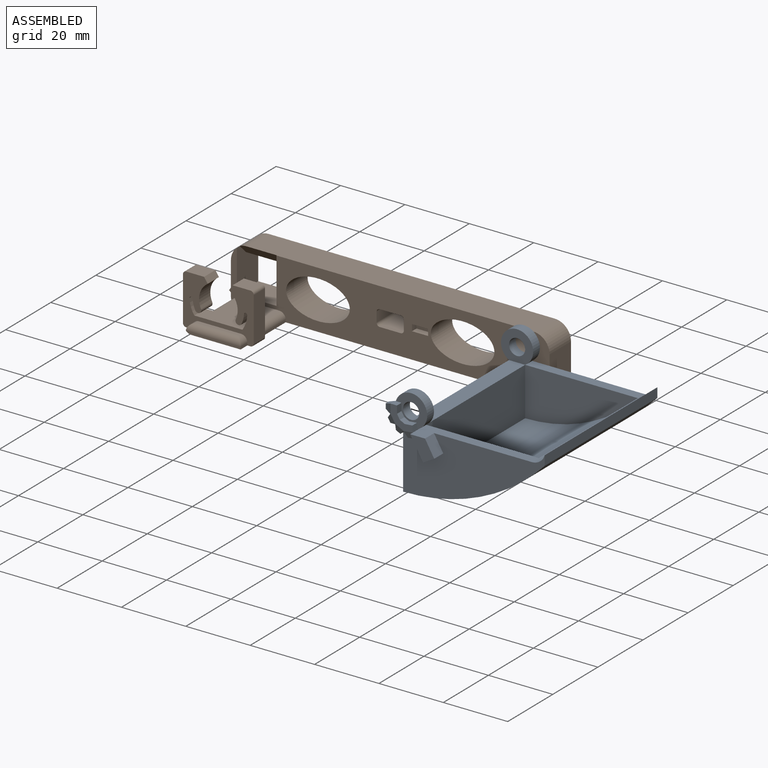
[diagram: assembled view]
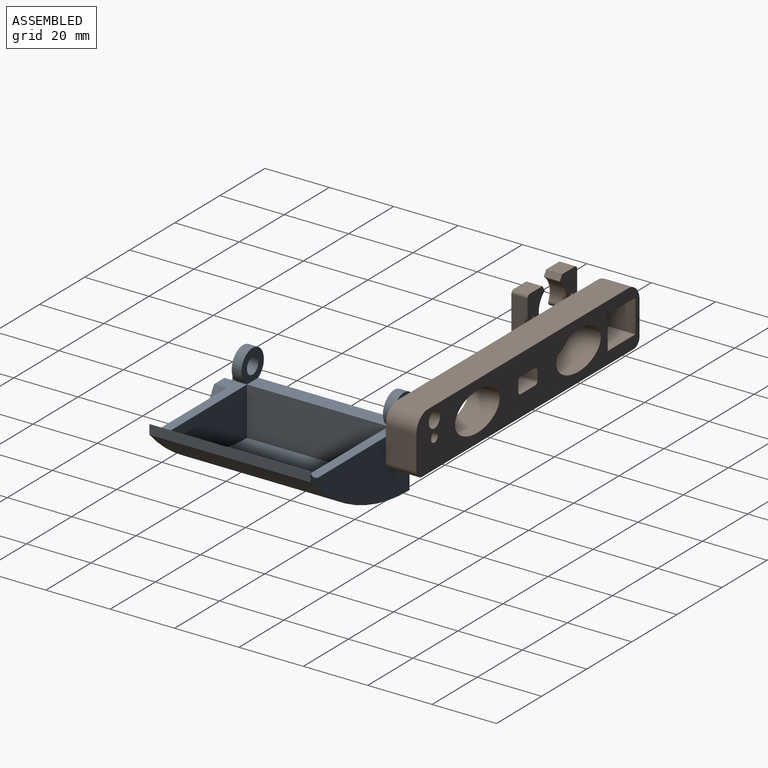
[diagram: assembled view, second angle]
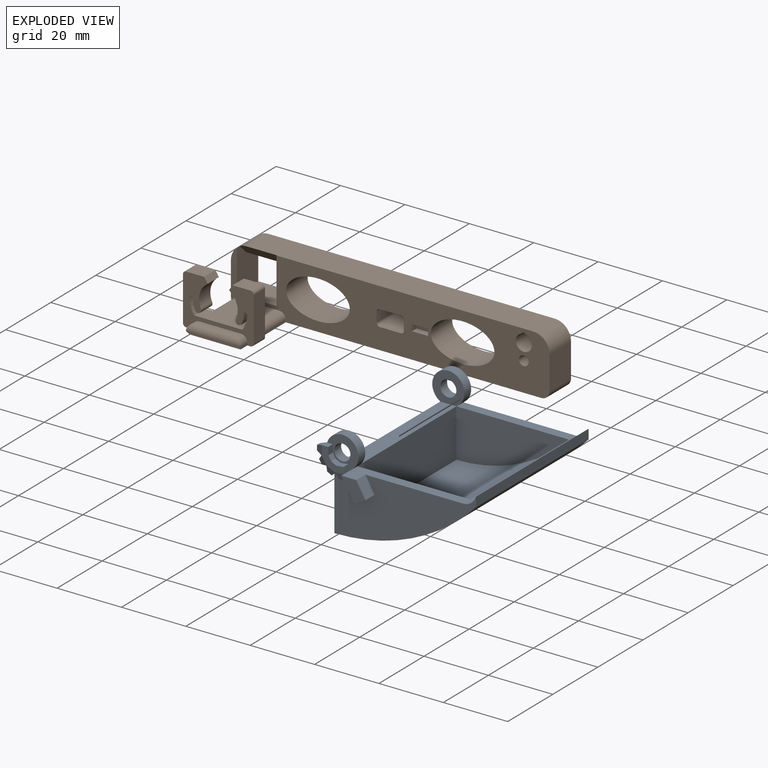
[diagram: exploded view]
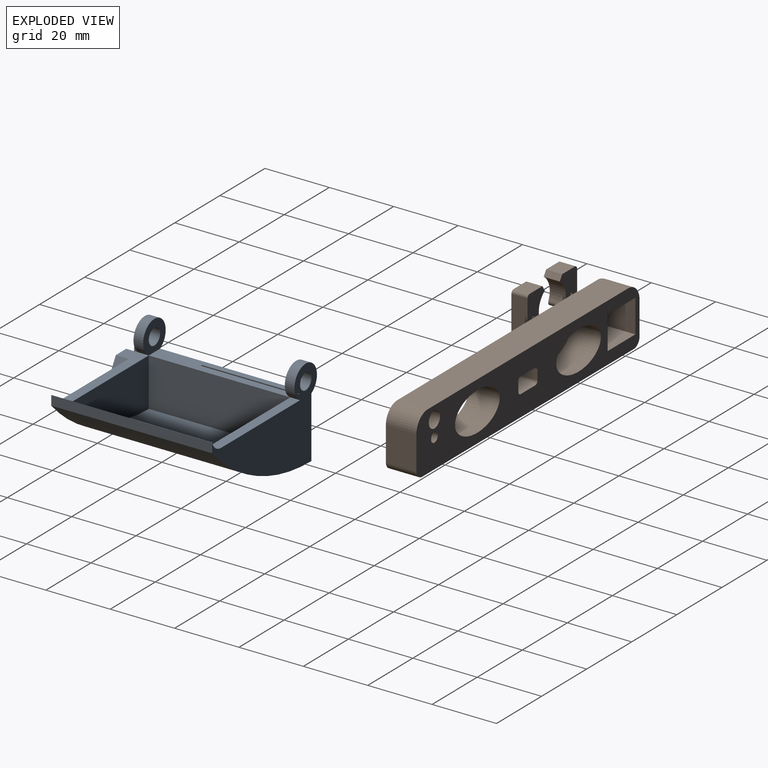
[diagram: exploded view, second angle]
ASSEMBLY  parts=2 mates=2
PART A: 53 faces, bbox 48.5x54x28.3 mm
  f0: plane 0.12x0.06mm, normal (-0.91,0,-0.42), area 0mm2, adj f40,f42,f47
  f1: plane 46.27x28.33mm, normal (0,-1,0), area 584.5mm2, adj f8,f9,f10,f11,f13,f14,f16,f23
  f2: plane 0.13x0.05mm, normal (-0.99,0,0.12), area 0mm2, adj f34,f36,f40
  f3: plane 0.11x0.08mm, normal (-0.78,0,0.62), area 0mm2, adj f28,f30,f34
  f4: plane 35x3mm, normal (0,0,1), area 105mm2, adj f11,f12,f18,f20
  f5: plane 44x5mm, normal (0,0,1), area 220mm2, adj f6,f8,f15,f21
  f6: plane 44x15mm, normal (1,0,0), area 660mm2, adj f5,f7,f17,f18
  f7: cylinder r=48.33mm len=44mm, axis (0,-1,0), area 1722.1mm2, adj f6,f11,f17,f18
  f8: plane 50x19mm, normal (-1,0,0), area 950mm2, adj f1,f5,f9,f12,f13,f20,f22
  f9: cylinder r=60.45mm len=50mm, axis (0,-1,0), area 2464mm2, adj f1,f8,f10,f12
  f10: plane 50x3mm, normal (1,0,0), area 150mm2, adj f1,f9,f11,f12
  f11: cylinder r=4.17mm len=50mm, axis (0,-1,0), area 268.1mm2, adj f1,f4,f7,f10,f12,f16
  f12: plane 46.5x28.33mm, normal (0,1,0), area 637.4mm2, adj f4,f8,f9,f10,f11,f19,f20
  f13: cylinder r=5mm len=10mm, axis (0,-1,0), area 78.5mm2, adj f1,f8,f15,f16,f22
  f14: cylinder r=2.5mm len=5mm, axis (0,-1,0), area 47.1mm2, adj f1,f15
  f15: plane 10x9.33mm, normal (0,1,0), area 56.6mm2, adj f5,f13,f14
  f16: plane 35x7mm, normal (0,0,1), area 123.5mm2, adj f1,f11,f13,f17,f49,f51,f52
  f17: plane 35x15mm, normal (0,1,0), area 362.5mm2, adj f6,f7,f16
  f18: plane 35x15mm, normal (0,-1,0), area 362.5mm2, adj f4,f6,f7
  f19: cylinder r=2.5mm len=5mm, axis (0,1,0), area 47.1mm2, adj f12,f21
  f20: cylinder r=5mm len=10mm, axis (0,1,0), area 78.5mm2, adj f4,f8,f12,f21
  f21: plane 10x9.33mm, normal (0,-1,0), area 56.6mm2, adj f5,f19,f20
  f22: plane 8.08x4.5mm, normal (0,1,0), area 12.2mm2, adj f8,f13,f23,f24,f27,f29,f31,f33
  f23: plane 2x2mm, normal (0,0,1), area 4mm2, adj f1,f22,f25,f26,f29
  f24: plane 1.54x1.27mm, normal (-1,0,0), area 2mm2, adj f22,f27,f28,f29
  f25: plane 2.35x2mm, normal (1,0,0), area 4.7mm2, adj f1,f23,f26,f32
  f26: plane 6.97x6.61mm, normal (0,-1,0), area 19.6mm2, adj f23,f25,f28,f30,f32,f34,f36,f38
  f27: plane 1.95x1.87mm, normal (-0.34,0,-0.94), area 3.2mm2, adj f22,f24,f28,f35
  f28: plane 2.95x2mm, normal (-0.34,-0.94,0), area 4.8mm2, adj f3,f24,f26,f27,f29,f30
  f29: plane 2x2mm, normal (-0.34,0,0.94), area 3.5mm2, adj f22,f23,f24,f28
  f30: plane 0.04x0.03mm, normal (-0.52,0,0.85), area 0mm2, adj f3,f26,f28
  f31: plane 1.31x1.27mm, normal (-0.85,0,-0.52), area 2mm2, adj f22,f33,f34,f35
  f32: plane 2x1.45mm, normal (0.85,0,0.52), area 3.4mm2, adj f1,f25,f26,f38
  f33: plane 1.95x1.95mm, normal (0.2,0,-0.98), area 3.2mm2, adj f22,f31,f34,f41
  f34: plane 2.98x2.8mm, normal (-0.29,-0.94,-0.18), area 4.8mm2, adj f2,f3,f26,f31,f33,f35,f36
  f35: plane 1.95x1.56mm, normal (-0.78,0,0.62), area 3.2mm2, adj f22,f27,f31,f34
  f36: plane 0.05x0.02mm, normal (-0.89,0,0.45), area 0mm2, adj f2,f26,f34
  f37: plane 1.38x1.27mm, normal (-0.45,0,-0.89), area 2mm2, adj f1,f22,f39,f40,f41
  f38: plane 2x1.52mm, normal (0.45,0,0.89), area 3.4mm2, adj f1,f26,f32,f45
  f39: plane 1.95x1.45mm, normal (0.69,0,-0.73), area 3.2mm2, adj f1,f37,f40,f48
  f40: plane 2.83x2.81mm, normal (-0.15,-0.94,-0.31), area 4.8mm2, adj f0,f2,f26,f37,f39,f41,f42
  f41: plane 1.98x1.95mm, normal (-0.99,0,0.12), area 3.2mm2, adj f22,f33,f37,f40
  f42: plane 0.05x0.02mm, normal (-1,0,-0.09), area 0mm2, adj f0,f26,f40
  f43: plane 1.54x1.27mm, normal (0.09,0,-1), area 2mm2, adj f1,f46,f47,f48
  f44: plane 2x1.99mm, normal (1,0,0.09), area 4mm2, adj f1,f26,f45,f46
  f45: plane 2.34x2mm, normal (-0.09,0,1), area 4.7mm2, adj f1,f26,f38,f44
  f46: plane 2.06x2mm, normal (0.97,0,-0.26), area 3.5mm2, adj f1,f43,f44,f47
  f47: plane 2.99x2.19mm, normal (0.03,-0.94,-0.34), area 4.8mm2, adj f0,f26,f43,f46,f48
  f48: plane 1.95x1.81mm, normal (-0.91,0,-0.42), area 3.2mm2, adj f1,f39,f43,f47
  f49: plane 6.93x4mm, normal (-0.87,0,-0.5), area 32mm2, adj f1,f16,f50,f52
  f50: plane 4x3.46mm, normal (0.5,0,-0.87), area 16mm2, adj f1,f49,f51,f52
  f51: plane 4.93x4mm, normal (0.87,0,0.5), area 22.8mm2, adj f1,f16,f50,f52
  f52: plane 7.46x6.93mm, normal (0,-1,0), area 27.4mm2, adj f16,f49,f50,f51
PART B: 68 faces, bbox 29.5x102x18 mm
  f0: plane 10.38x9.5mm, normal (0,1,0), area 98.6mm2, adj f21,f22,f26,f53
  f1: plane 13x12mm, normal (0,0,1), area 156mm2, adj f3,f4,f22,f48
  f2: plane 12x0.75mm, normal (0,-1,0), area 9mm2, adj f3,f15,f22,f48
  f3: cylinder r=2mm len=12mm, axis (1,0,0), area 37.7mm2, adj f1,f2,f22,f48
  f4: cylinder r=2mm len=12mm, axis (1,0,0), area 27.3mm2, adj f1,f22,f48,f53
  f5: plane 9.5x3mm, normal (0,1,0), area 28.5mm2, adj f21,f22,f59,f62
  f6: plane 9.5x6.5mm, normal (0,0,-1), area 61.8mm2, adj f21,f22,f59,f60
  f7: plane 9.5x3mm, normal (0,-1,0), area 28.5mm2, adj f21,f22,f60,f61
  f8: plane 9.5x1mm, normal (0,-0.58,-0.82), area 11.6mm2, adj f9,f16,f21,f22
  f9: cylinder r=2.5mm len=9.5mm, axis (-1,0,0), area 129.7mm2, adj f8,f16,f21,f22
  f10: plane 14.15x9.5mm, normal (0,1,0), area 105.8mm2, adj f11,f13,f18,f21,f22,f51
  f11: plane 12.3x5.5mm, normal (0,0,-1), area 67.6mm2, adj f10,f12,f21,f51
  f12: plane 12.99x9.5mm, normal (0,-1,0), area 105mm2, adj f11,f18,f21,f22,f26,f51
  f13: plane 88.84x9.5mm, normal (0,0,1), area 842.6mm2, adj f10,f21,f22,f26,f50,f51
  f14: plane 10.38x9.5mm, normal (0,-1,0), area 98.6mm2, adj f21,f22,f50,f54
  f15: plane 98.46x29.5mm, normal (0,0,-1), area 1211.4mm2, adj f2,f21,f22,f24,f25,f48,f49,f52
  f16: plane 9.5x1mm, normal (0,0.58,-0.82), area 11.6mm2, adj f8,f9,f21,f22
  f17: extruded ~19.77x12mm, area 481.2mm2, adj f21,f22
  f18: plane 12.3x9.5mm, normal (0,0,1), area 116.8mm2, adj f10,f12,f21,f22
  f19: extruded ~19.77x12mm, area 481.2mm2, adj f21,f22
  f20: plane 9.5x6.5mm, normal (0,0,1), area 61.8mm2, adj f21,f22,f61,f62
  f21: plane 99x18mm, normal (1,0,0), area 1200.1mm2, adj f0,f5,f6,f7,f8,f9,f10,f11
  f22: plane 99x18mm, normal (-1,0,0), area 1100.2mm2, adj f0,f1,f2,f3,f4,f5,f6,f7
  f23: plane 13x1mm, normal (0,0,1), area 13mm2, adj f28,f29,f30,f49
  f24: plane 3x0.75mm, normal (0,-1,0), area 2.2mm2, adj f15,f25,f28,f49
  f25: plane 17x0.75mm, normal (-1,0,0), area 12.3mm2, adj f15,f24,f29,f52
  f26: cylinder r=5.08mm len=9.5mm, axis (-1,0,0), area 73.9mm2, adj f0,f12,f13,f21,f22,f51
  f27: cylinder r=1.5mm len=9.5mm, axis (-1,0,0), area 89.5mm2, adj f21,f22
  f28: cylinder r=2mm len=3mm, axis (1,0,0), area 7.1mm2, adj f23,f24,f29,f49
  f29: cylinder r=2mm len=17mm, axis (0,-1,0), area 48.8mm2, adj f23,f25,f28,f30
  f30: cylinder r=2mm len=3mm, axis (1,0,0), area 7.1mm2, adj f23,f29,f49,f52
  f31: plane 13.67x5mm, normal (0,-1,0), area 68.3mm2, adj f48,f49,f57,f58
  f32: plane 5.58x5mm, normal (0,0,1), area 27.9mm2, adj f33,f48,f49,f58
  f33: plane 5x1.67mm, normal (0,0.83,0.55), area 10mm2, adj f32,f34,f48,f49
  f34: cylinder r=6mm len=7.57mm, axis (-1,0,0), area 42.8mm2, adj f33,f35,f48,f49
  f35: cylinder r=1mm len=5mm, axis (-1,0,0), area 15.7mm2, adj f34,f36,f48,f49
  f36: cylinder r=8mm len=5mm, axis (-1,0,0), area 15.4mm2, adj f35,f37,f48,f49
  f37: cylinder r=0.5mm len=5mm, axis (-1,0,0), area 7.9mm2, adj f36,f38,f48,f49
  f38: cylinder r=9mm len=5mm, axis (-1,0,0), area 23.9mm2, adj f37,f39,f48,f49
  f39: plane 14.97x5mm, normal (0,0,1), area 74.8mm2, adj f38,f40,f48,f49
  f40: cylinder r=9mm len=5mm, axis (-1,0,0), area 23.9mm2, adj f39,f41,f48,f49
  f41: cylinder r=0.5mm len=5mm, axis (-1,0,0), area 7.9mm2, adj f40,f42,f48,f49
  f42: cylinder r=8mm len=5mm, axis (-1,0,0), area 15.4mm2, adj f41,f43,f48,f49
  f43: cylinder r=1mm len=5mm, axis (-1,0,0), area 15.7mm2, adj f42,f44,f48,f49
  f44: cylinder r=6mm len=7.57mm, axis (-1,0,0), area 42.8mm2, adj f43,f45,f48,f49
  f45: plane 5x1.67mm, normal (0,-0.83,0.55), area 10mm2, adj f44,f46,f48,f49
  f46: plane 5.58x5mm, normal (0,0,1), area 27.9mm2, adj f45,f48,f49,f55
  f47: plane 13.67x5mm, normal (0,1,0), area 68.3mm2, adj f48,f49,f55,f56
  f48: plane 22x15.67mm, normal (1,0,0), area 165.7mm2, adj f1,f2,f3,f4,f15,f31,f32,f33
  f49: plane 22x15.67mm, normal (-1,0,0), area 164.9mm2, adj f15,f23,f24,f28,f30,f31,f32,f33
  f50: cylinder r=5.08mm len=9.5mm, axis (1,0,0), area 75.8mm2, adj f13,f14,f21,f22
  f51: plane 12.3x3.85mm, normal (-0.71,0,-0.71), area 65.3mm2, adj f10,f11,f12,f13,f26
  f52: cylinder r=2.54mm len=3mm, axis (1,0,0), area 6mm2, adj f15,f25,f30,f49
  f53: cylinder r=2.54mm len=21.5mm, axis (1,0,0), area 74.1mm2, adj f0,f4,f15,f21,f22,f48
  f54: cylinder r=2.54mm len=9.5mm, axis (-1,0,0), area 37.9mm2, adj f14,f15,f21,f22
  f55: cylinder r=1mm len=5mm, axis (-1,0,0), area 7.9mm2, adj f46,f47,f48,f49
  f56: cylinder r=1mm len=5mm, axis (1,0,0), area 7.9mm2, adj f15,f47,f48,f49
  f57: cylinder r=1mm len=5mm, axis (-1,0,0), area 7.9mm2, adj f15,f31,f48,f49
  f58: cylinder r=1mm len=5mm, axis (-1,0,0), area 7.9mm2, adj f31,f32,f48,f49
  f59: cylinder r=1mm len=9.5mm, axis (-1,0,0), area 14.9mm2, adj f5,f6,f21,f22
  f60: cylinder r=1mm len=9.5mm, axis (1,0,0), area 14.9mm2, adj f6,f7,f21,f22
  f61: cylinder r=1mm len=9.5mm, axis (-1,0,0), area 14.9mm2, adj f7,f20,f21,f22
  f62: cylinder r=1mm len=9.5mm, axis (1,0,0), area 14.9mm2, adj f5,f20,f21,f22
  f63: plane 5x2mm, normal (0,0,-1), area 10mm2, adj f22,f64,f66,f67
  f64: plane 2x2mm, normal (0,1,0), area 4mm2, adj f22,f63,f65,f67
  f65: plane 5x2mm, normal (0,0,1), area 10mm2, adj f22,f64,f66,f67
  f66: plane 2x2mm, normal (0,-1,0), area 4mm2, adj f22,f63,f65,f67
  f67: plane 5x2mm, normal (-1,0,0), area 10mm2, adj f63,f64,f65,f66
PLACE A t=(-15.88,14.1,22.15)mm
PLACE B rot(axis=(0,0,1),90deg) t=(-77.38,64.1,21.48)mm
MATE planar B.f22 <-> A.f12  axis (0,-1,0) through (-70.35,64.1,21.34)mm
MATE cylindrical A.f13 <-> B.f9  axis (0,1,0) through (-35.88,64.1,26.48)mm
